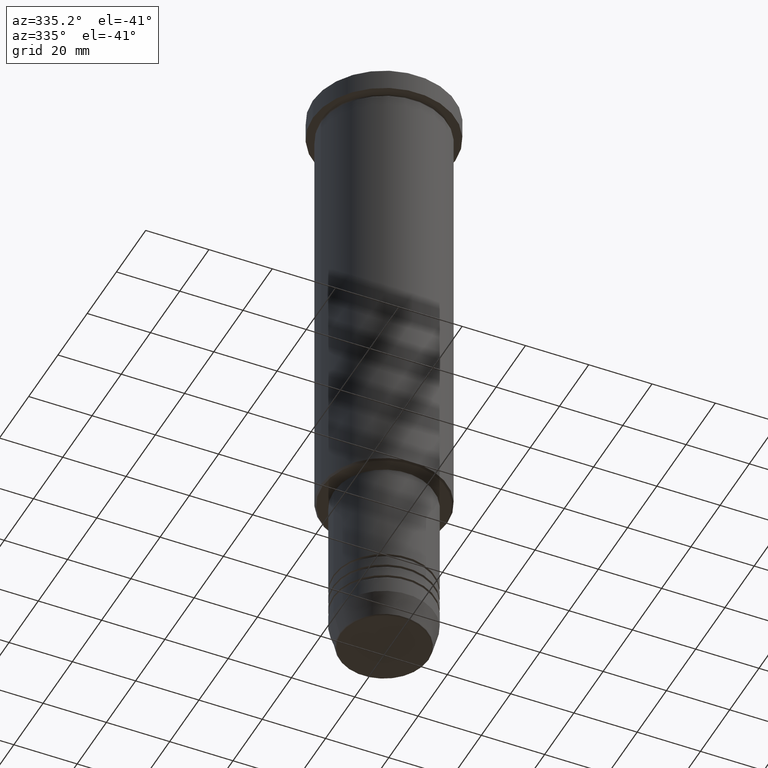
[diagram: clean part render]
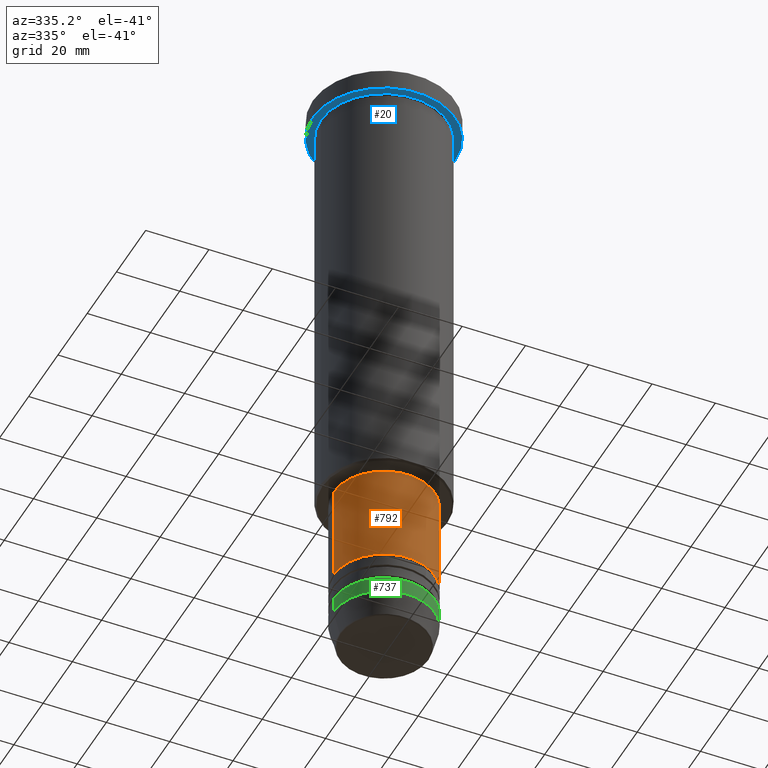
[diagram: same view with three faces highlighted in distinct colors, each labeled with its STEP entity id]
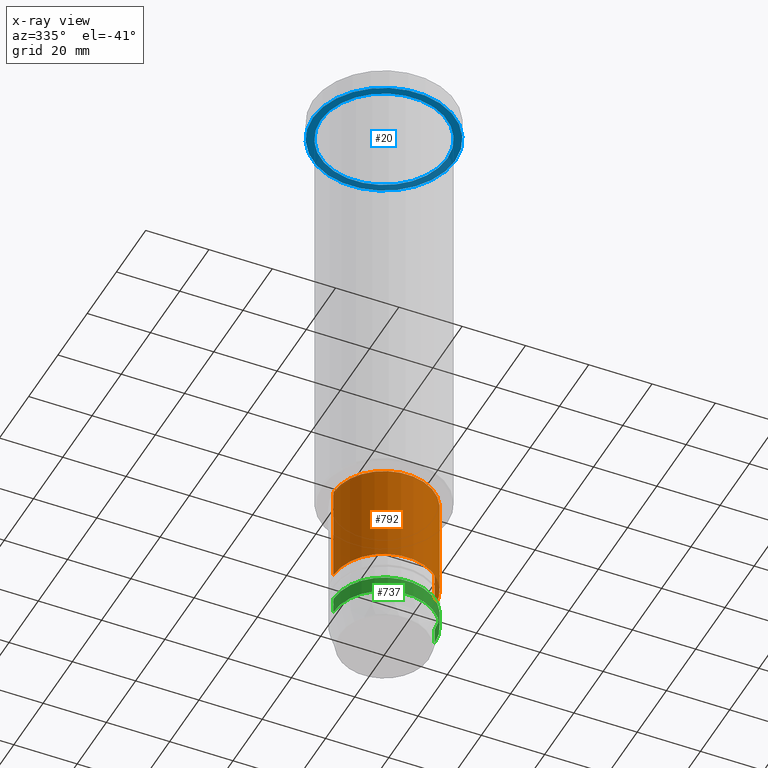
[diagram: x-ray of the same camera — body ghosted, the three highlighted faces saturated]
A machine part, auxiliary view with three faces highlighted in distinct colors.
The next image is the same camera in x-ray (body ghosted, the three faces saturated) — at least one of them is partly hidden behind the body in this view.
Their STEP definitions:

[orange] entity #792 — the highlighted cylindrical surface (partial cylindrical patch) has radius 16 mm, axis along (-0, -0, 1).
#12 = DIRECTION ( 'NONE',  ( -0.000000000000000000, -0.000000000000000000, 1.000000000000000000 ) ) ;
#44 = VERTEX_POINT ( 'NONE', #1183 ) ;
#47 = DIRECTION ( 'NONE',  ( -0.000000000000000000, -0.000000000000000000, 1.000000000000000000 ) ) ;
#72 = ORIENTED_EDGE ( 'NONE', *, *, #599, .T. ) ;
#77 = EDGE_CURVE ( 'NONE', #440, #311, #963, .T. ) ;
#90 = CARTESIAN_POINT ( 'NONE',  ( 16.00000000000000000, 0.000000000000000000, 0.000000000000000000 ) ) ;
#145 = CYLINDRICAL_SURFACE ( 'NONE', #968, 16.00000000000000000 ) ;
#199 = EDGE_CURVE ( 'NONE', #1163, #440, #861, .T. ) ;
#205 = DIRECTION ( 'NONE',  ( -0.000000000000000000, -0.000000000000000000, 1.000000000000000000 ) ) ;
#222 = DIRECTION ( 'NONE',  ( 1.000000000000000000, 0.000000000000000000, 0.000000000000000000 ) ) ;
#311 = VERTEX_POINT ( 'NONE', #1139 ) ;
#359 = LINE ( 'NONE', #90, #575 ) ;
#360 = ORIENTED_EDGE ( 'NONE', *, *, #199, .F. ) ;
#366 = VECTOR ( 'NONE', #205, 1000.000000000000000 ) ;
#428 = FACE_OUTER_BOUND ( 'NONE', #979, .T. ) ;
#440 = VERTEX_POINT ( 'NONE', #1167 ) ;
#486 = EDGE_CURVE ( 'NONE', #44, #311, #359, .T. ) ;
#536 = ORIENTED_EDGE ( 'NONE', *, *, #77, .F. ) ;
#575 = VECTOR ( 'NONE', #638, 1000.000000000000000 ) ;
#599 = EDGE_CURVE ( 'NONE', #1163, #44, #1042, .T. ) ;
#602 = CARTESIAN_POINT ( 'NONE',  ( 0.000000000000000000, 0.000000000000000000, -178.5000000000000284 ) ) ;
#638 = DIRECTION ( 'NONE',  ( -0.000000000000000000, -0.000000000000000000, 1.000000000000000000 ) ) ;
#694 = ORIENTED_EDGE ( 'NONE', *, *, #486, .T. ) ;
#695 = DIRECTION ( 'NONE',  ( -0.000000000000000000, -0.000000000000000000, 1.000000000000000000 ) ) ;
#697 = DIRECTION ( 'NONE',  ( 1.000000000000000000, 0.000000000000000000, 0.000000000000000000 ) ) ;
#792 = ADVANCED_FACE ( 'NONE', ( #428 ), #145, .T. ) ;
#821 = AXIS2_PLACEMENT_3D ( 'NONE', #1168, #12, #1018 ) ;
#854 = AXIS2_PLACEMENT_3D ( 'NONE', #602, #47, #697 ) ;
#861 = LINE ( 'NONE', #1033, #366 ) ;
#963 = CIRCLE ( 'NONE', #821, 16.00000000000000000 ) ;
#968 = AXIS2_PLACEMENT_3D ( 'NONE', #1143, #695, #222 ) ;
#979 = EDGE_LOOP ( 'NONE', ( #360, #72, #694, #536 ) ) ;
#1018 = DIRECTION ( 'NONE',  ( 1.000000000000000000, 0.000000000000000000, 0.000000000000000000 ) ) ;
#1033 = CARTESIAN_POINT ( 'NONE',  ( -16.00000000000000000, 1.959434878635765131E-15, 0.000000000000000000 ) ) ;
#1042 = CIRCLE ( 'NONE', #854, 16.00000000000000000 ) ;
#1121 = CARTESIAN_POINT ( 'NONE',  ( -16.00000000000000000, 1.959434878635765131E-15, -178.5000000000000284 ) ) ;
#1139 = CARTESIAN_POINT ( 'NONE',  ( 16.00000000000000000, 0.000000000000000000, -147.0000000000000000 ) ) ;
#1143 = CARTESIAN_POINT ( 'NONE',  ( 0.000000000000000000, 0.000000000000000000, 0.000000000000000000 ) ) ;
#1163 = VERTEX_POINT ( 'NONE', #1121 ) ;
#1167 = CARTESIAN_POINT ( 'NONE',  ( -16.00000000000000000, 1.959434878635765131E-15, -147.0000000000000000 ) ) ;
#1168 = CARTESIAN_POINT ( 'NONE',  ( 0.000000000000000000, 0.000000000000000000, -147.0000000000000000 ) ) ;
#1183 = CARTESIAN_POINT ( 'NONE',  ( 16.00000000000000000, 0.000000000000000000, -178.5000000000000284 ) ) ;

[blue] entity #20 — the highlighted planar face has unit normal (0, 0, -1).
#20 = ADVANCED_FACE ( 'NONE', ( #1022, #1178 ), #1103, .T. ) ;
#28 = AXIS2_PLACEMENT_3D ( 'NONE', #176, #718, #342 ) ;
#41 = AXIS2_PLACEMENT_3D ( 'NONE', #1073, #338, #713 ) ;
#53 = DIRECTION ( 'NONE',  ( -1.000000000000000000, 0.000000000000000000, 0.000000000000000000 ) ) ;
#102 = CARTESIAN_POINT ( 'NONE',  ( 0.000000000000000000, 22.50000000000000000, -6.999999999999995559 ) ) ;
#105 = ORIENTED_EDGE ( 'NONE', *, *, #1156, .F. ) ;
#176 = CARTESIAN_POINT ( 'NONE',  ( 0.000000000000000000, 0.000000000000000000, -6.999999999999995559 ) ) ;
#249 = EDGE_CURVE ( 'NONE', #843, #426, #384, .T. ) ;
#266 = CARTESIAN_POINT ( 'NONE',  ( 22.50000000000000000, 0.000000000000000000, -6.999999999999995559 ) ) ;
#338 = DIRECTION ( 'NONE',  ( -0.000000000000000000, -0.000000000000000000, 1.000000000000000000 ) ) ;
#342 = DIRECTION ( 'NONE',  ( -1.000000000000000000, 0.000000000000000000, 0.000000000000000000 ) ) ;
#363 = ORIENTED_EDGE ( 'NONE', *, *, #613, .F. ) ;
#384 = CIRCLE ( 'NONE', #1027, 20.00000000000000000 ) ;
#397 = EDGE_LOOP ( 'NONE', ( #679, #789 ) ) ;
#426 = VERTEX_POINT ( 'NONE', #995 ) ;
#429 = AXIS2_PLACEMENT_3D ( 'NONE', #1112, #849, #853 ) ;
#496 = CARTESIAN_POINT ( 'NONE',  ( 0.000000000000000000, 0.000000000000000000, -6.999999999999995559 ) ) ;
#590 = CARTESIAN_POINT ( 'NONE',  ( -20.00000000000000000, 0.000000000000000000, -6.999999999999995559 ) ) ;
#608 = CARTESIAN_POINT ( 'NONE',  ( -22.50000000000000000, 2.755455298081544778E-15, -6.999999999999995559 ) ) ;
#613 = EDGE_CURVE ( 'NONE', #817, #919, #1116, .T. ) ;
#649 = DIRECTION ( 'NONE',  ( 0.000000000000000000, 0.000000000000000000, -1.000000000000000000 ) ) ;
#679 = ORIENTED_EDGE ( 'NONE', *, *, #249, .T. ) ;
#713 = DIRECTION ( 'NONE',  ( 1.000000000000000000, 0.000000000000000000, 0.000000000000000000 ) ) ;
#718 = DIRECTION ( 'NONE',  ( -0.000000000000000000, -0.000000000000000000, 1.000000000000000000 ) ) ;
#789 = ORIENTED_EDGE ( 'NONE', *, *, #982, .T. ) ;
#817 = VERTEX_POINT ( 'NONE', #608 ) ;
#836 = DIRECTION ( 'NONE',  ( -1.000000000000000000, 0.000000000000000000, -0.000000000000000000 ) ) ;
#843 = VERTEX_POINT ( 'NONE', #590 ) ;
#849 = DIRECTION ( 'NONE',  ( -0.000000000000000000, -0.000000000000000000, 1.000000000000000000 ) ) ;
#853 = DIRECTION ( 'NONE',  ( 1.000000000000000000, 0.000000000000000000, 0.000000000000000000 ) ) ;
#919 = VERTEX_POINT ( 'NONE', #266 ) ;
#934 = CIRCLE ( 'NONE', #429, 22.50000000000000000 ) ;
#982 = EDGE_CURVE ( 'NONE', #426, #843, #1043, .T. ) ;
#988 = AXIS2_PLACEMENT_3D ( 'NONE', #102, #649, #836 ) ;
#995 = CARTESIAN_POINT ( 'NONE',  ( 20.00000000000000000, 2.449293598294706513E-15, -6.999999999999995559 ) ) ;
#1022 = FACE_BOUND ( 'NONE', #397, .T. ) ;
#1027 = AXIS2_PLACEMENT_3D ( 'NONE', #496, #1146, #53 ) ;
#1043 = CIRCLE ( 'NONE', #28, 20.00000000000000000 ) ;
#1067 = EDGE_LOOP ( 'NONE', ( #105, #363 ) ) ;
#1073 = CARTESIAN_POINT ( 'NONE',  ( 0.000000000000000000, 0.000000000000000000, -6.999999999999995559 ) ) ;
#1103 = PLANE ( 'NONE',  #988 ) ;
#1112 = CARTESIAN_POINT ( 'NONE',  ( 0.000000000000000000, 0.000000000000000000, -6.999999999999995559 ) ) ;
#1116 = CIRCLE ( 'NONE', #41, 22.50000000000000000 ) ;
#1146 = DIRECTION ( 'NONE',  ( -0.000000000000000000, -0.000000000000000000, 1.000000000000000000 ) ) ;
#1156 = EDGE_CURVE ( 'NONE', #919, #817, #934, .T. ) ;
#1178 = FACE_OUTER_BOUND ( 'NONE', #1067, .T. ) ;

[green] entity #737 — the highlighted cylindrical surface (partial cylindrical patch) has radius 16 mm, axis along (-0, -0, 1).
#1 = LINE ( 'NONE', #904, #663 ) ;
#3 = DIRECTION ( 'NONE',  ( 1.000000000000000000, 0.000000000000000000, 0.000000000000000000 ) ) ;
#63 = ORIENTED_EDGE ( 'NONE', *, *, #1026, .T. ) ;
#71 = CARTESIAN_POINT ( 'NONE',  ( 16.00000000000000000, 0.000000000000000000, -187.5000000000000284 ) ) ;
#75 = ORIENTED_EDGE ( 'NONE', *, *, #860, .F. ) ;
#131 = ORIENTED_EDGE ( 'NONE', *, *, #477, .F. ) ;
#217 = DIRECTION ( 'NONE',  ( -0.000000000000000000, -0.000000000000000000, 1.000000000000000000 ) ) ;
#252 = EDGE_LOOP ( 'NONE', ( #75, #63, #795, #131 ) ) ;
#254 = CARTESIAN_POINT ( 'NONE',  ( 0.000000000000000000, 0.000000000000000000, -192.5000000000000284 ) ) ;
#290 = VERTEX_POINT ( 'NONE', #340 ) ;
#292 = AXIS2_PLACEMENT_3D ( 'NONE', #770, #774, #1124 ) ;
#340 = CARTESIAN_POINT ( 'NONE',  ( 16.00000000000000000, 0.000000000000000000, -192.5000000000000284 ) ) ;
#391 = CYLINDRICAL_SURFACE ( 'NONE', #292, 16.00000000000000000 ) ;
#400 = CIRCLE ( 'NONE', #1101, 16.00000000000000000 ) ;
#405 = VERTEX_POINT ( 'NONE', #71 ) ;
#456 = VERTEX_POINT ( 'NONE', #1097 ) ;
#464 = VECTOR ( 'NONE', #217, 1000.000000000000000 ) ;
#477 = EDGE_CURVE ( 'NONE', #456, #405, #400, .T. ) ;
#495 = CIRCLE ( 'NONE', #678, 16.00000000000000000 ) ;
#537 = CARTESIAN_POINT ( 'NONE',  ( 0.000000000000000000, 0.000000000000000000, -187.5000000000000284 ) ) ;
#541 = CARTESIAN_POINT ( 'NONE',  ( -16.00000000000000000, 1.959434878635765131E-15, -192.5000000000000284 ) ) ;
#663 = VECTOR ( 'NONE', #727, 1000.000000000000000 ) ;
#678 = AXIS2_PLACEMENT_3D ( 'NONE', #254, #1179, #733 ) ;
#712 = CARTESIAN_POINT ( 'NONE',  ( -16.00000000000000000, 1.959434878635765131E-15, 0.000000000000000000 ) ) ;
#727 = DIRECTION ( 'NONE',  ( -0.000000000000000000, -0.000000000000000000, 1.000000000000000000 ) ) ;
#733 = DIRECTION ( 'NONE',  ( 1.000000000000000000, 0.000000000000000000, 0.000000000000000000 ) ) ;
#737 = ADVANCED_FACE ( 'NONE', ( #1038 ), #391, .T. ) ;
#770 = CARTESIAN_POINT ( 'NONE',  ( 0.000000000000000000, 0.000000000000000000, 0.000000000000000000 ) ) ;
#774 = DIRECTION ( 'NONE',  ( -0.000000000000000000, -0.000000000000000000, 1.000000000000000000 ) ) ;
#795 = ORIENTED_EDGE ( 'NONE', *, *, #929, .T. ) ;
#813 = LINE ( 'NONE', #712, #464 ) ;
#860 = EDGE_CURVE ( 'NONE', #952, #456, #813, .T. ) ;
#904 = CARTESIAN_POINT ( 'NONE',  ( 16.00000000000000000, 0.000000000000000000, 0.000000000000000000 ) ) ;
#929 = EDGE_CURVE ( 'NONE', #290, #405, #1, .T. ) ;
#952 = VERTEX_POINT ( 'NONE', #541 ) ;
#1026 = EDGE_CURVE ( 'NONE', #952, #290, #495, .T. ) ;
#1038 = FACE_OUTER_BOUND ( 'NONE', #252, .T. ) ;
#1097 = CARTESIAN_POINT ( 'NONE',  ( -16.00000000000000000, 1.959434878635765131E-15, -187.5000000000000284 ) ) ;
#1101 = AXIS2_PLACEMENT_3D ( 'NONE', #537, #1182, #3 ) ;
#1124 = DIRECTION ( 'NONE',  ( 1.000000000000000000, 0.000000000000000000, 0.000000000000000000 ) ) ;
#1179 = DIRECTION ( 'NONE',  ( -0.000000000000000000, -0.000000000000000000, 1.000000000000000000 ) ) ;
#1182 = DIRECTION ( 'NONE',  ( -0.000000000000000000, -0.000000000000000000, 1.000000000000000000 ) ) ;